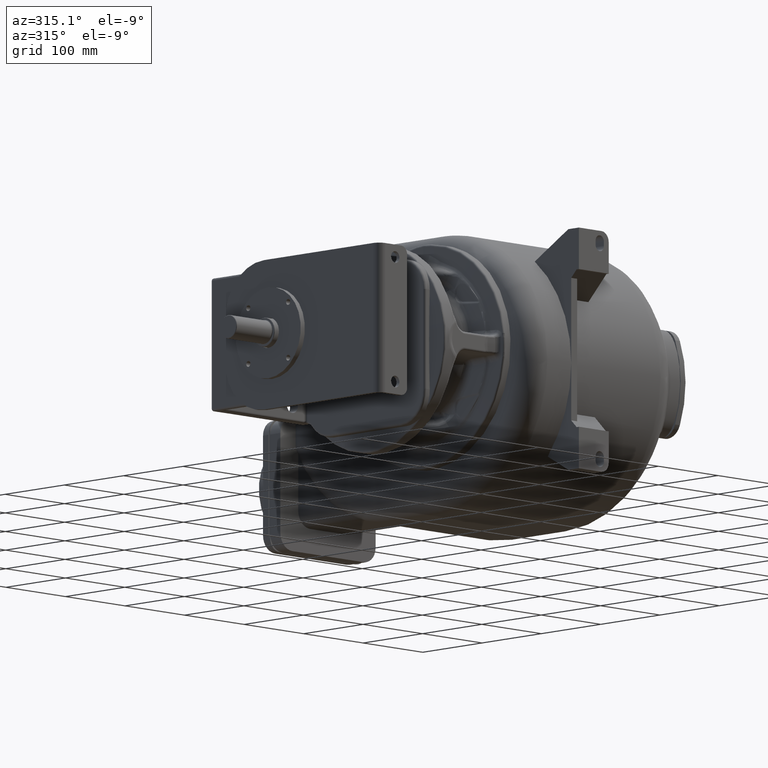
[diagram: clean part render]
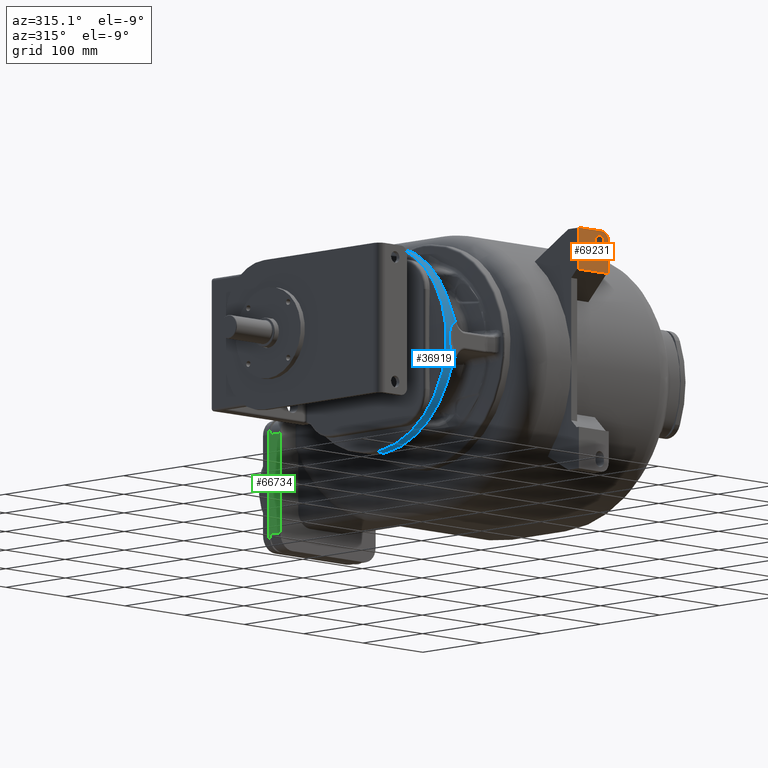
[diagram: same view with three faces highlighted in distinct colors, each labeled with its STEP entity id]
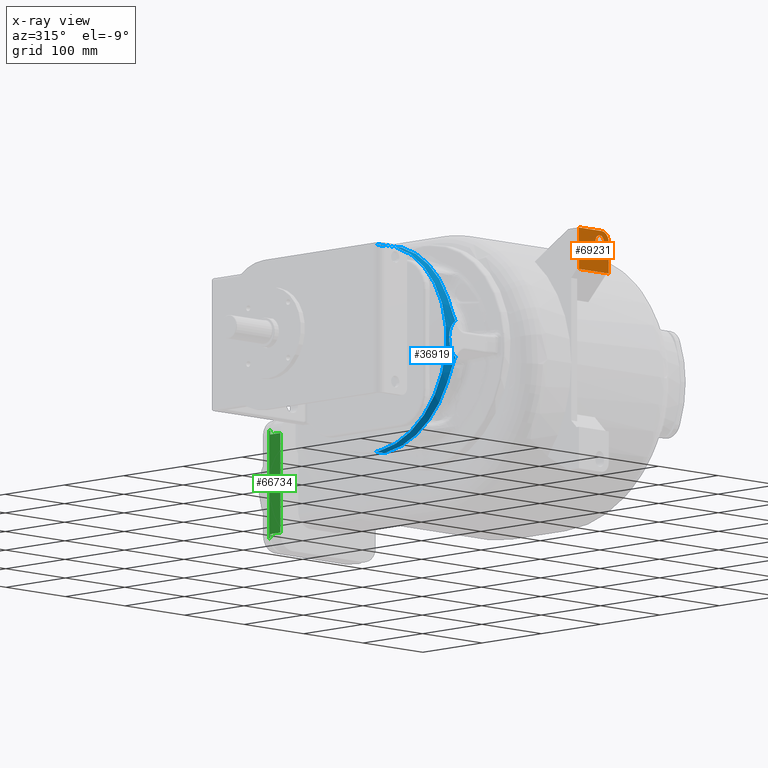
[diagram: x-ray of the same camera — body ghosted, the three highlighted faces saturated]
A machine part, auxiliary view with three faces highlighted in distinct colors.
The next image is the same camera in x-ray (body ghosted, the three faces saturated) — at least one of them is partly hidden behind the body in this view.
Their STEP definitions:

[orange] entity #69231 — the highlighted planar face has unit normal (0, -1, 0).
#25499=DIRECTION('',(1.E0,0.E0,0.E0));
#25500=VECTOR('',#25499,5.E1);
#25501=CARTESIAN_POINT('',(-3.5E1,0.E0,9.5E1));
#25502=LINE('',#25501,#25500);
#25503=DIRECTION('',(0.E0,0.E0,-1.E0));
#25504=VECTOR('',#25503,5.E1);
#25505=CARTESIAN_POINT('',(-3.5E1,0.E0,1.45E2));
#25506=LINE('',#25505,#25504);
#25507=DIRECTION('',(-1.E0,0.E0,0.E0));
#25508=VECTOR('',#25507,3.8E1);
#25509=CARTESIAN_POINT('',(3.E0,0.E0,1.45E2));
#25510=LINE('',#25509,#25508);
#25511=CARTESIAN_POINT('',(3.E0,0.E0,1.33E2));
#25512=DIRECTION('',(0.E0,-1.E0,0.E0));
#25513=DIRECTION('',(1.E0,0.E0,0.E0));
#25514=AXIS2_PLACEMENT_3D('',#25511,#25512,#25513);
#25516=DIRECTION('',(0.E0,0.E0,1.E0));
#25517=VECTOR('',#25516,3.8E1);
#25518=CARTESIAN_POINT('',(1.5E1,0.E0,9.5E1));
#25519=LINE('',#25518,#25517);
#25520=DIRECTION('',(0.E0,0.E0,1.E0));
#25521=VECTOR('',#25520,5.E0);
#25522=CARTESIAN_POINT('',(7.E0,0.E0,1.275E2));
#25523=LINE('',#25522,#25521);
#25524=CARTESIAN_POINT('',(0.E0,0.E0,1.325E2));
#25525=DIRECTION('',(0.E0,-1.E0,0.E0));
#25526=DIRECTION('',(1.E0,0.E0,0.E0));
#25527=AXIS2_PLACEMENT_3D('',#25524,#25525,#25526);
#25529=DIRECTION('',(0.E0,0.E0,-1.E0));
#25530=VECTOR('',#25529,5.E0);
#25531=CARTESIAN_POINT('',(-7.E0,0.E0,1.325E2));
#25532=LINE('',#25531,#25530);
#25533=CARTESIAN_POINT('',(0.E0,0.E0,1.275E2));
#25534=DIRECTION('',(0.E0,-1.E0,0.E0));
#25535=DIRECTION('',(-1.E0,0.E0,0.E0));
#25536=AXIS2_PLACEMENT_3D('',#25533,#25534,#25535);
#28958=CARTESIAN_POINT('',(1.5E1,0.E0,9.5E1));
#28959=CARTESIAN_POINT('',(1.5E1,0.E0,1.33E2));
#28960=VERTEX_POINT('',#28958);
#28961=VERTEX_POINT('',#28959);
#28962=CARTESIAN_POINT('',(3.E0,0.E0,1.45E2));
#28963=CARTESIAN_POINT('',(-3.5E1,0.E0,1.45E2));
#28964=VERTEX_POINT('',#28962);
#28965=VERTEX_POINT('',#28963);
#29048=CARTESIAN_POINT('',(-3.5E1,0.E0,9.5E1));
#29049=VERTEX_POINT('',#29048);
#29050=CARTESIAN_POINT('',(7.E0,0.E0,1.275E2));
#29051=CARTESIAN_POINT('',(7.E0,0.E0,1.325E2));
#29052=VERTEX_POINT('',#29050);
#29053=VERTEX_POINT('',#29051);
#29054=CARTESIAN_POINT('',(-7.E0,0.E0,1.325E2));
#29055=VERTEX_POINT('',#29054);
#29056=CARTESIAN_POINT('',(-7.E0,0.E0,1.275E2));
#29057=VERTEX_POINT('',#29056);
#69206=CARTESIAN_POINT('',(-1.05E2,0.E0,0.E0));
#69207=DIRECTION('',(0.E0,-1.E0,0.E0));
#69208=DIRECTION('',(0.E0,0.E0,1.E0));
#69209=AXIS2_PLACEMENT_3D('',#69206,#69207,#69208);
#69210=PLANE('',#69209);
#69211=ORIENTED_EDGE('',*,*,#69199,.F.);
#69212=ORIENTED_EDGE('',*,*,#69157,.F.);
#69214=ORIENTED_EDGE('',*,*,#69213,.F.);
#69216=ORIENTED_EDGE('',*,*,#69215,.F.);
#69218=ORIENTED_EDGE('',*,*,#69217,.F.);
#69219=EDGE_LOOP('',(#69211,#69212,#69214,#69216,#69218));
#69220=FACE_OUTER_BOUND('',#69219,.F.);
#69222=ORIENTED_EDGE('',*,*,#69221,.T.);
#69224=ORIENTED_EDGE('',*,*,#69223,.T.);
#69226=ORIENTED_EDGE('',*,*,#69225,.T.);
#69228=ORIENTED_EDGE('',*,*,#69227,.T.);
#69229=EDGE_LOOP('',(#69222,#69224,#69226,#69228));
#69230=FACE_BOUND('',#69229,.F.);
#69231=ADVANCED_FACE('',(#69220,#69230),#69210,.T.);
#25515=CIRCLE('',#25514,1.2E1);
#25528=CIRCLE('',#25527,7.E0);
#25537=CIRCLE('',#25536,7.E0);
#69157=EDGE_CURVE('',#28965,#29049,#25506,.T.);
#69199=EDGE_CURVE('',#29049,#28960,#25502,.T.);
#69213=EDGE_CURVE('',#28964,#28965,#25510,.T.);
#69215=EDGE_CURVE('',#28961,#28964,#25515,.T.);
#69217=EDGE_CURVE('',#28960,#28961,#25519,.T.);
#69221=EDGE_CURVE('',#29052,#29053,#25523,.T.);
#69223=EDGE_CURVE('',#29053,#29055,#25528,.T.);
#69225=EDGE_CURVE('',#29055,#29057,#25532,.T.);
#69227=EDGE_CURVE('',#29057,#29052,#25537,.T.);

[blue] entity #36919 — the highlighted cylindrical surface (partial cylindrical patch) has radius 125 mm, axis along (-1, 0, 0).
#2120=DIRECTION('',(-1.E0,5.068852638957E-10,-9.037237529244E-9));
#2121=VECTOR('',#2120,1.296261634701E1);
#2122=CARTESIAN_POINT('',(-1.902556363685E2,1.73E2,1.248038460946E2));
#2123=LINE('',#2122,#2121);
#4297=CARTESIAN_POINT('',(-2.032182527118E2,1.730000000004E2,
-1.248038460869E2));
#4299=DIRECTION('',(1.E0,-3.344139028298E-11,-5.962420972072E-10));
#4300=VECTOR('',#4299,1.296261634353E1);
#4301=CARTESIAN_POINT('',(-2.032182527118E2,1.730000000004E2,
-1.248038460869E2));
#4302=LINE('',#4301,#4300);
#4585=CARTESIAN_POINT('',(-2.032182527118E2,1.730000000004E2,
-1.248038460869E2));
#4586=CARTESIAN_POINT('',(-2.031981088487E2,1.725223680823E2,
-1.247770566161E2));
#4587=CARTESIAN_POINT('',(-2.031645316353E2,1.715668330315E2,
-1.247179617416E2));
#4588=CARTESIAN_POINT('',(-2.031343057508E2,1.701328394574E2,
-1.246127162994E2));
#4589=CARTESIAN_POINT('',(-2.031275886742E2,1.691766521308E2,
-1.245314643374E2));
#4590=CARTESIAN_POINT('',(-2.031275885858E2,1.686985314066E2,
-1.244880588839E2));
#4592=CARTESIAN_POINT('',(-2.031275885832E2,1.8E2,0.E0));
#4593=DIRECTION('',(-1.E0,0.E0,0.E0));
#4594=DIRECTION('',(0.E0,-9.041174875584E-2,-9.959044711652E-1));
#4595=AXIS2_PLACEMENT_3D('',#4592,#4593,#4594);
#4597=CARTESIAN_POINT('',(-2.031275885883E2,1.686985315077E2,1.244880588511E2));
#4598=CARTESIAN_POINT('',(-2.031275890352E2,1.691767597650E2,1.245314738810E2));
#4599=CARTESIAN_POINT('',(-2.031343112285E2,1.701330904004E2,1.246127366243E2));
#4600=CARTESIAN_POINT('',(-2.031645379800E2,1.715670647228E2,1.247179769669E2));
#4601=CARTESIAN_POINT('',(-2.031981129473E2,1.725224672820E2,1.247770621167E2));
#4602=CARTESIAN_POINT('',(-2.032182527156E2,1.730000000066E2,1.248038459774E2));
#4604=CARTESIAN_POINT('',(-1.903468937001E2,1.686569785212E2,1.244842795847E2));
#4605=CARTESIAN_POINT('',(-1.903468936957E2,1.691397138969E2,1.245282664845E2));
#4606=CARTESIAN_POINT('',(-1.903401326935E2,1.701051338833E2,1.246105731844E2));
#4607=CARTESIAN_POINT('',(-1.903097095516E2,1.715529714881E2,1.247170772783E2));
#4608=CARTESIAN_POINT('',(-1.902759124997E2,1.725177473195E2,1.247767974973E2));
#4609=CARTESIAN_POINT('',(-1.902556363685E2,1.73E2,1.248038460946E2));
#4611=CARTESIAN_POINT('',(-1.903468937001E2,1.8E2,0.E0));
#4612=DIRECTION('',(-1.E0,0.E0,0.E0));
#4613=DIRECTION('',(0.E0,-9.079249117815E-1,4.191328602800E-1));
#4614=AXIS2_PLACEMENT_3D('',#4611,#4612,#4613);
#4616=CARTESIAN_POINT('',(-1.857854989760E2,5.689609557005E1,2.168937228867E1));
#4617=CARTESIAN_POINT('',(-1.859113226579E2,5.694885743832E1,2.198883172868E1));
#4618=CARTESIAN_POINT('',(-1.861550131581E2,5.705724559775E1,2.259118596069E1));
#4619=CARTESIAN_POINT('',(-1.864965508976E2,5.722773082041E1,2.350020517821E1));
#4620=CARTESIAN_POINT('',(-1.868199380495E2,5.740861990792E1,2.442659033659E1));
#4621=CARTESIAN_POINT('',(-1.871283392418E2,5.760194949951E1,2.537797564915E1));
#4622=CARTESIAN_POINT('',(-1.874247997998E2,5.781029169028E1,2.636341231286E1));
#4623=CARTESIAN_POINT('',(-1.877132997137E2,5.803842687555E1,2.740025622845E1));
#4624=CARTESIAN_POINT('',(-1.879964354782E2,5.829179962899E1,2.850569392669E1));
#4625=CARTESIAN_POINT('',(-1.882758706346E2,5.857675877126E1,2.969749144232E1));
#4626=CARTESIAN_POINT('',(-1.885513909629E2,5.889995733862E1,3.099059894241E1));
#4627=CARTESIAN_POINT('',(-1.888164660150E2,5.926202342704E1,3.237384311043E1));
#4628=CARTESIAN_POINT('',(-1.890663820435E2,5.966357032169E1,3.383715359990E1));
#4629=CARTESIAN_POINT('',(-1.892978703968E2,6.010496296748E1,3.537040321985E1));
#4630=CARTESIAN_POINT('',(-1.895074267835E2,6.058470255586E1,3.695853623037E1));
#4631=CARTESIAN_POINT('',(-1.896926138510E2,6.109991936308E1,3.858444960388E1));
#4632=CARTESIAN_POINT('',(-1.898524944932E2,6.164622775723E1,4.022927996907E1));
#4633=CARTESIAN_POINT('',(-1.899875193030E2,6.222136188277E1,4.188356724176E1));
#4634=CARTESIAN_POINT('',(-1.901002554919E2,6.283231906578E1,4.356403714386E1));
#4635=CARTESIAN_POINT('',(-1.901919525701E2,6.348495519377E1,4.528148257470E1));
#4636=CARTESIAN_POINT('',(-1.902632003867E2,6.418899832988E1,4.705378989582E1));
#4637=CARTESIAN_POINT('',(-1.903129481551E2,6.493727418930E1,4.885543910449E1));
#4638=CARTESIAN_POINT('',(-1.903412217159E2,6.571697763399E1,5.065220975895E1));
#4639=CARTESIAN_POINT('',(-1.903468938405E2,6.624355820575E1,5.181577168369E1));
#4640=CARTESIAN_POINT('',(-1.903468936902E2,6.650938602430E1,5.239160753639E1));
#4642=CARTESIAN_POINT('',(-1.857854982495E2,5.689609516752E1,
-2.168936640071E1));
#4643=CARTESIAN_POINT('',(-1.859612295721E2,5.687967435972E1,
-2.159616560220E1));
#4644=CARTESIAN_POINT('',(-1.863134604040E2,5.684574503224E1,
-2.140235502511E1));
#4645=CARTESIAN_POINT('',(-1.868443695867E2,5.679164302411E1,
-2.108878760130E1));
#4646=CARTESIAN_POINT('',(-1.873762427482E2,5.673455555396E1,
-2.075262756905E1));
#4647=CARTESIAN_POINT('',(-1.879078804288E2,5.667468255246E1,
-2.039394319942E1));
#4648=CARTESIAN_POINT('',(-1.884380791821E2,5.661223691608E1,
-2.001280893708E1));
#4649=CARTESIAN_POINT('',(-1.889647906191E2,5.654753948101E1,
-1.960990434054E1));
#4650=CARTESIAN_POINT('',(-1.894854026618E2,5.648103077157E1,
-1.918666765528E1));
#4651=CARTESIAN_POINT('',(-1.899980369826E2,5.641308542316E1,
-1.874417759375E1));
#4652=CARTESIAN_POINT('',(-1.905018339171E2,5.634396585435E1,
-1.828279670634E1));
#4653=CARTESIAN_POINT('',(-1.909957361943E2,5.627396705634E1,
-1.780308940210E1));
#4654=CARTESIAN_POINT('',(-1.914786354821E2,5.620340722412E1,
-1.730579520420E1));
#4655=CARTESIAN_POINT('',(-1.919494404357E2,5.613260878707E1,
-1.679172317996E1));
#4656=CARTESIAN_POINT('',(-1.924073587213E2,5.606186308734E1,
-1.626149980251E1));
#4657=CARTESIAN_POINT('',(-1.928515989257E2,5.599146191761E1,
-1.571579253924E1));
#4658=CARTESIAN_POINT('',(-1.932814891792E2,5.592168571477E1,
-1.515522922598E1));
#4659=CARTESIAN_POINT('',(-1.936963895201E2,5.585281150475E1,
-1.458046319803E1));
#4660=CARTESIAN_POINT('',(-1.940957116880E2,5.578510778015E1,
-1.399214081164E1));
#4661=CARTESIAN_POINT('',(-1.944789202143E2,5.571883403305E1,
-1.339090041478E1));
#4662=CARTESIAN_POINT('',(-1.948455270951E2,5.565424431627E1,
-1.277741262993E1));
#4663=CARTESIAN_POINT('',(-1.951950784887E2,5.559157890510E1,
-1.215230883631E1));
#4664=CARTESIAN_POINT('',(-1.955271560418E2,5.553107088637E1,
-1.151624739310E1));
#4665=CARTESIAN_POINT('',(-1.958414120852E2,5.547294061923E1,
-1.086986494110E1));
#4666=CARTESIAN_POINT('',(-1.961374827509E2,5.541739764016E1,
-1.021379823102E1));
#4667=CARTESIAN_POINT('',(-1.964150803834E2,5.536463803159E1,
-9.548655256571E0));
#4668=CARTESIAN_POINT('',(-1.966739454102E2,5.531484814898E1,
-8.875062460609E0));
#4669=CARTESIAN_POINT('',(-1.969137937487E2,5.526820200719E1,
-8.193638113033E0));
#4670=CARTESIAN_POINT('',(-1.971344077258E2,5.522486406788E1,
-7.505040481224E0));
#4671=CARTESIAN_POINT('',(-1.973355901360E2,5.518498532518E1,
-6.809924387414E0));
#4672=CARTESIAN_POINT('',(-1.975171176005E2,5.514870279203E1,
-6.108931823096E0));
#4673=CARTESIAN_POINT('',(-1.976788575541E2,5.511614018007E1,
-5.402708550390E0));
#4674=CARTESIAN_POINT('',(-1.978206926470E2,5.508740502252E1,
-4.691834767004E0));
#4675=CARTESIAN_POINT('',(-1.979424688969E2,5.506259280431E1,
-3.976896349255E0));
#4676=CARTESIAN_POINT('',(-1.980441155144E2,5.504178735753E1,
-3.258520388983E0));
#4677=CARTESIAN_POINT('',(-1.981255497432E2,5.502505860092E1,
-2.537329683490E0));
#4678=CARTESIAN_POINT('',(-1.981866631831E2,5.501246280747E1,
-1.813954054596E0));
#4679=CARTESIAN_POINT('',(-1.982274426141E2,5.500404228765E1,
-1.089038815559E0));
#4680=CARTESIAN_POINT('',(-1.982478523947E2,5.499982481825E1,
-3.632171466885E-1));
#4681=CARTESIAN_POINT('',(-1.982478433595E2,5.499982390585E1,
3.628732769052E-1));
#4682=CARTESIAN_POINT('',(-1.982274608926E2,5.500403880781E1,1.088617283787E0));
#4683=CARTESIAN_POINT('',(-1.981867109220E2,5.501245536235E1,1.813426350991E0));
#4684=CARTESIAN_POINT('',(-1.981255971759E2,5.502504599609E1,2.536700877541E0));
#4685=CARTESIAN_POINT('',(-1.980442066861E2,5.504176969360E1,3.257842234166E0));
#4686=CARTESIAN_POINT('',(-1.979425799179E2,5.506257194683E1,3.976244079505E0));
#4687=CARTESIAN_POINT('',(-1.978207868499E2,5.508738291607E1,4.691250712352E0));
#4688=CARTESIAN_POINT('',(-1.976789690488E2,5.511611910669E1,5.402225804340E0));
#4689=CARTESIAN_POINT('',(-1.975172235606E2,5.514868268581E1,6.108522128541E0));
#4690=CARTESIAN_POINT('',(-1.973356922610E2,5.518496252297E1,6.809505081950E0));
#4691=CARTESIAN_POINT('',(-1.971345631515E2,5.522483566863E1,7.504566221090E0));
#4692=CARTESIAN_POINT('',(-1.969139789159E2,5.526816635332E1,8.193093496564E0));
#4693=CARTESIAN_POINT('',(-1.966741501136E2,5.531480613357E1,8.874471661135E0));
#4694=CARTESIAN_POINT('',(-1.964153245395E2,5.536459311966E1,9.548069506646E0));
#4695=CARTESIAN_POINT('',(-1.961377236804E2,5.541735191676E1,1.021324131641E1));
#4696=CARTESIAN_POINT('',(-1.958416466930E2,5.547289583409E1,1.086935285942E1));
#4697=CARTESIAN_POINT('',(-1.955274032935E2,5.553102752867E1,1.151577932201E1));
#4698=CARTESIAN_POINT('',(-1.951953183934E2,5.559153482961E1,1.215185785288E1));
#4699=CARTESIAN_POINT('',(-1.948457746485E2,5.565419971340E1,1.277697881586E1));
#4700=CARTESIAN_POINT('',(-1.944791906674E2,5.571878781354E1,1.339047125290E1));
#4701=CARTESIAN_POINT('',(-1.940960072012E2,5.578505671403E1,1.399168707766E1));
#4702=CARTESIAN_POINT('',(-1.936967203287E2,5.585275610563E1,1.457999136875E1));
#4703=CARTESIAN_POINT('',(-1.932818369533E2,5.592162867210E1,1.515476248341E1));
#4704=CARTESIAN_POINT('',(-1.928519363202E2,5.599140723371E1,1.571536152883E1));
#4705=CARTESIAN_POINT('',(-1.924076885538E2,5.606181118309E1,1.626110450237E1));
#4706=CARTESIAN_POINT('',(-1.919497801248E2,5.613255742254E1,1.679134436018E1));
#4707=CARTESIAN_POINT('',(-1.914789908997E2,5.620335463605E1,1.730541898128E1));
#4708=CARTESIAN_POINT('',(-1.909961166841E2,5.627391222878E1,1.780270832903E1));
#4709=CARTESIAN_POINT('',(-1.905022332303E2,5.634391011968E1,1.828241987078E1));
#4710=CARTESIAN_POINT('',(-1.899984296255E2,5.641303219231E1,1.874382690391E1));
#4711=CARTESIAN_POINT('',(-1.894857831805E2,5.648098133301E1,1.918634955202E1));
#4712=CARTESIAN_POINT('',(-1.889651877139E2,5.654749009347E1,1.960959337555E1));
#4713=CARTESIAN_POINT('',(-1.884384943387E2,5.661218588301E1,2.001249438570E1));
#4714=CARTESIAN_POINT('',(-1.879082864860E2,5.667463716944E1,2.039366914815E1));
#4715=CARTESIAN_POINT('',(-1.873765691118E2,5.673451971992E1,2.075241495952E1));
#4716=CARTESIAN_POINT('',(-1.868445858899E2,5.679161924390E1,2.108864965752E1));
#4717=CARTESIAN_POINT('',(-1.863135629884E2,5.684573605403E1,2.140230171774E1));
#4718=CARTESIAN_POINT('',(-1.859612617321E2,5.687967094907E1,2.159615050930E1));
#4719=CARTESIAN_POINT('',(-1.857854989760E2,5.689609557005E1,2.168937228867E1));
#4721=CARTESIAN_POINT('',(-1.903468936928E2,6.650938602292E1,
-5.239160753420E1));
#4722=CARTESIAN_POINT('',(-1.903468936937E2,6.624344282509E1,
-5.181552130165E1));
#4723=CARTESIAN_POINT('',(-1.903412538399E2,6.571662827527E1,
-5.065143422761E1));
#4724=CARTESIAN_POINT('',(-1.903129425302E2,6.493652541042E1,
-4.885368952148E1));
#4725=CARTESIAN_POINT('',(-1.902631014741E2,6.418794628904E1,
-4.705120931445E1));
#4726=CARTESIAN_POINT('',(-1.901918442929E2,6.348380133654E1,
-4.527851634974E1));
#4727=CARTESIAN_POINT('',(-1.901001130998E2,6.283119669239E1,
-4.356101565598E1));
#4728=CARTESIAN_POINT('',(-1.899872831362E2,6.222044374229E1,
-4.188097482012E1));
#4729=CARTESIAN_POINT('',(-1.898523819178E2,6.164570643212E1,
-4.022772337389E1));
#4730=CARTESIAN_POINT('',(-1.896926826725E2,6.110007489436E1,
-3.858489041675E1));
#4731=CARTESIAN_POINT('',(-1.895077127429E2,6.058569258631E1,
-3.696169057937E1));
#4732=CARTESIAN_POINT('',(-1.892987161329E2,6.010668971430E1,
-3.537621713343E1));
#4733=CARTESIAN_POINT('',(-1.890676436421E2,5.966579531862E1,
-3.384504047303E1));
#4734=CARTESIAN_POINT('',(-1.888179891900E2,5.926443080375E1,
-3.238281121557E1));
#4735=CARTESIAN_POINT('',(-1.885531877438E2,5.890229517721E1,
-3.099973746048E1));
#4736=CARTESIAN_POINT('',(-1.882777748155E2,5.857882959200E1,
-2.970597272178E1));
#4737=CARTESIAN_POINT('',(-1.879982210528E2,5.829348219617E1,
-2.851289727756E1));
#4738=CARTESIAN_POINT('',(-1.877148200133E2,5.803971265449E1,
-2.740599923519E1));
#4739=CARTESIAN_POINT('',(-1.874259976431E2,5.781120726979E1,
-2.636767480474E1));
#4740=CARTESIAN_POINT('',(-1.871292835367E2,5.760256397050E1,
-2.538095291580E1));
#4741=CARTESIAN_POINT('',(-1.868207196355E2,5.740905082706E1,
-2.442876169698E1));
#4742=CARTESIAN_POINT('',(-1.864971645282E2,5.722803466271E1,
-2.350179889422E1));
#4743=CARTESIAN_POINT('',(-1.861554169517E2,5.705742695623E1,
-2.259218627737E1));
#4744=CARTESIAN_POINT('',(-1.859114728657E2,5.694892144699E1,
-2.198918851780E1));
#4745=CARTESIAN_POINT('',(-1.857854982495E2,5.689609516752E1,
-2.168936640071E1));
#4747=CARTESIAN_POINT('',(-1.903468937001E2,1.8E2,0.E0));
#4748=DIRECTION('',(-1.E0,0.E0,0.E0));
#4749=DIRECTION('',(0.E0,-9.074417178294E-2,-9.958742366822E-1));
#4750=AXIS2_PLACEMENT_3D('',#4747,#4748,#4749);
#4752=CARTESIAN_POINT('',(-1.902556363682E2,1.73E2,-1.248038460946E2));
#4753=CARTESIAN_POINT('',(-1.902759124984E2,1.725177473410E2,
-1.247767974986E2));
#4754=CARTESIAN_POINT('',(-1.903097095497E2,1.715529715388E2,
-1.247170772816E2));
#4755=CARTESIAN_POINT('',(-1.903401326922E2,1.701051339379E2,
-1.246105731887E2));
#4756=CARTESIAN_POINT('',(-1.903468936955E2,1.691397139239E2,
-1.245282664870E2));
#4757=CARTESIAN_POINT('',(-1.903468936999E2,1.686569785271E2,
-1.244842795854E2));
#30248=VERTEX_POINT('',#4297);
#30250=VERTEX_POINT('',#4590);
#30251=CARTESIAN_POINT('',(-2.031275885832E2,1.686985315029E2,
1.244880589045E2));
#30252=VERTEX_POINT('',#30251);
#30255=VERTEX_POINT('',#4602);
#30307=VERTEX_POINT('',#4721);
#30308=VERTEX_POINT('',#4745);
#30311=VERTEX_POINT('',#4752);
#30312=VERTEX_POINT('',#4757);
#30331=VERTEX_POINT('',#4604);
#30332=VERTEX_POINT('',#4609);
#30337=CARTESIAN_POINT('',(-1.903468937001E2,6.650938602731E1,
5.239160753500E1));
#30338=VERTEX_POINT('',#30337);
#30539=VERTEX_POINT('',#4719);
#36893=CARTESIAN_POINT('',(-9.283303884779E1,1.8E2,0.E0));
#36894=DIRECTION('',(-1.E0,0.E0,0.E0));
#36895=DIRECTION('',(0.E0,1.E0,0.E0));
#36896=AXIS2_PLACEMENT_3D('',#36893,#36894,#36895);
#36897=CYLINDRICAL_SURFACE('',#36896,1.25E2);
#36898=ORIENTED_EDGE('',*,*,#36724,.T.);
#36899=ORIENTED_EDGE('',*,*,#36743,.T.);
#36900=ORIENTED_EDGE('',*,*,#36887,.T.);
#36901=ORIENTED_EDGE('',*,*,#33793,.F.);
#36903=ORIENTED_EDGE('',*,*,#36902,.F.);
#36905=ORIENTED_EDGE('',*,*,#36904,.F.);
#36907=ORIENTED_EDGE('',*,*,#36906,.F.);
#36909=ORIENTED_EDGE('',*,*,#36908,.F.);
#36911=ORIENTED_EDGE('',*,*,#36910,.F.);
#36913=ORIENTED_EDGE('',*,*,#36912,.F.);
#36915=ORIENTED_EDGE('',*,*,#36914,.F.);
#36916=ORIENTED_EDGE('',*,*,#36595,.F.);
#36917=EDGE_LOOP('',(#36898,#36899,#36900,#36901,#36903,#36905,#36907,#36909,
#36911,#36913,#36915,#36916));
#36918=FACE_OUTER_BOUND('',#36917,.F.);
#36919=ADVANCED_FACE('',(#36918),#36897,.T.);
#4591=B_SPLINE_CURVE_WITH_KNOTS('',3,(#4585,#4586,#4587,#4588,#4589,#4590),
.UNSPECIFIED.,.F.,.F.,(4,1,1,4),(0.E0,3.333333333333E-1,6.666666666667E-1,1.E0),
.UNSPECIFIED.);
#4596=CIRCLE('',#4595,1.25E2);
#4603=B_SPLINE_CURVE_WITH_KNOTS('',3,(#4597,#4598,#4599,#4600,#4601,#4602),
.UNSPECIFIED.,.F.,.F.,(4,1,1,4),(0.E0,3.333333333333E-1,6.666666666667E-1,1.E0),
.UNSPECIFIED.);
#4610=B_SPLINE_CURVE_WITH_KNOTS('',3,(#4604,#4605,#4606,#4607,#4608,#4609),
.UNSPECIFIED.,.F.,.F.,(4,1,1,4),(0.E0,3.333333333333E-1,6.666666666667E-1,1.E0),
.UNSPECIFIED.);
#4615=CIRCLE('',#4614,1.25E2);
#4641=B_SPLINE_CURVE_WITH_KNOTS('',3,(#4616,#4617,#4618,#4619,#4620,#4621,#4622,
#4623,#4624,#4625,#4626,#4627,#4628,#4629,#4630,#4631,#4632,#4633,#4634,#4635,
#4636,#4637,#4638,#4639,#4640),.UNSPECIFIED.,.F.,.F.,(4,1,1,1,1,1,1,1,1,1,1,1,1,
1,1,1,1,1,1,1,1,1,4),(0.E0,4.545454545455E-2,9.090909090909E-2,
1.363636363636E-1,1.818181818182E-1,2.272727272727E-1,2.727272727273E-1,
3.181818181818E-1,3.636363636364E-1,4.090909090909E-1,4.545454545455E-1,5.E-1,
5.454545454545E-1,5.909090909091E-1,6.363636363636E-1,6.818181818182E-1,
7.272727272727E-1,7.727272727273E-1,8.181818181818E-1,8.636363636364E-1,
9.090909090909E-1,9.545454545455E-1,1.E0),.UNSPECIFIED.);
#4720=B_SPLINE_CURVE_WITH_KNOTS('',3,(#4642,#4643,#4644,#4645,#4646,#4647,#4648,
#4649,#4650,#4651,#4652,#4653,#4654,#4655,#4656,#4657,#4658,#4659,#4660,#4661,
#4662,#4663,#4664,#4665,#4666,#4667,#4668,#4669,#4670,#4671,#4672,#4673,#4674,
#4675,#4676,#4677,#4678,#4679,#4680,#4681,#4682,#4683,#4684,#4685,#4686,#4687,
#4688,#4689,#4690,#4691,#4692,#4693,#4694,#4695,#4696,#4697,#4698,#4699,#4700,
#4701,#4702,#4703,#4704,#4705,#4706,#4707,#4708,#4709,#4710,#4711,#4712,#4713,
#4714,#4715,#4716,#4717,#4718,#4719),.UNSPECIFIED.,.F.,.F.,(4,1,1,1,1,1,1,1,1,1,
1,1,1,1,1,1,1,1,1,1,1,1,1,1,1,1,1,1,1,1,1,1,1,1,1,1,1,1,1,1,1,1,1,1,1,1,1,1,1,1,
1,1,1,1,1,1,1,1,1,1,1,1,1,1,1,1,1,1,1,1,1,1,1,1,1,4),(0.E0,1.333333333333E-2,
2.666666666667E-2,4.E-2,5.333333333333E-2,6.666666666667E-2,8.E-2,
9.333333333333E-2,1.066666666667E-1,1.2E-1,1.333333333333E-1,1.466666666667E-1,
1.6E-1,1.733333333333E-1,1.866666666667E-1,2.E-1,2.133333333333E-1,
2.266666666667E-1,2.4E-1,2.533333333333E-1,2.666666666667E-1,2.8E-1,
2.933333333333E-1,3.066666666667E-1,3.2E-1,3.333333333333E-1,3.466666666667E-1,
3.6E-1,3.733333333333E-1,3.866666666667E-1,4.E-1,4.133333333333E-1,
4.266666666667E-1,4.4E-1,4.533333333333E-1,4.666666666667E-1,4.8E-1,
4.933333333333E-1,5.066666666667E-1,5.2E-1,5.333333333333E-1,5.466666666667E-1,
5.6E-1,5.733333333333E-1,5.866666666667E-1,6.E-1,6.133333333333E-1,
6.266666666667E-1,6.4E-1,6.533333333333E-1,6.666666666667E-1,6.8E-1,
6.933333333333E-1,7.066666666667E-1,7.2E-1,7.333333333333E-1,7.466666666667E-1,
7.6E-1,7.733333333333E-1,7.866666666667E-1,8.E-1,8.133333333333E-1,
8.266666666667E-1,8.4E-1,8.533333333333E-1,8.666666666667E-1,8.8E-1,
8.933333333333E-1,9.066666666667E-1,9.2E-1,9.333333333333E-1,9.466666666667E-1,
9.6E-1,9.733333333333E-1,9.866666666667E-1,1.E0),.UNSPECIFIED.);
#4746=B_SPLINE_CURVE_WITH_KNOTS('',3,(#4721,#4722,#4723,#4724,#4725,#4726,#4727,
#4728,#4729,#4730,#4731,#4732,#4733,#4734,#4735,#4736,#4737,#4738,#4739,#4740,
#4741,#4742,#4743,#4744,#4745),.UNSPECIFIED.,.F.,.F.,(4,1,1,1,1,1,1,1,1,1,1,1,1,
1,1,1,1,1,1,1,1,1,4),(0.E0,4.545454545455E-2,9.090909090909E-2,
1.363636363636E-1,1.818181818182E-1,2.272727272727E-1,2.727272727273E-1,
3.181818181818E-1,3.636363636364E-1,4.090909090909E-1,4.545454545455E-1,5.E-1,
5.454545454545E-1,5.909090909091E-1,6.363636363636E-1,6.818181818182E-1,
7.272727272727E-1,7.727272727273E-1,8.181818181818E-1,8.636363636364E-1,
9.090909090909E-1,9.545454545455E-1,1.E0),.UNSPECIFIED.);
#4751=CIRCLE('',#4750,1.25E2);
#4758=B_SPLINE_CURVE_WITH_KNOTS('',3,(#4752,#4753,#4754,#4755,#4756,#4757),
.UNSPECIFIED.,.F.,.F.,(4,1,1,4),(0.E0,3.333333333333E-1,6.666666666667E-1,1.E0),
.UNSPECIFIED.);
#33793=EDGE_CURVE('',#30332,#30255,#2123,.T.);
#36595=EDGE_CURVE('',#30248,#30311,#4302,.T.);
#36724=EDGE_CURVE('',#30248,#30250,#4591,.T.);
#36743=EDGE_CURVE('',#30250,#30252,#4596,.T.);
#36887=EDGE_CURVE('',#30252,#30255,#4603,.T.);
#36902=EDGE_CURVE('',#30331,#30332,#4610,.T.);
#36904=EDGE_CURVE('',#30338,#30331,#4615,.T.);
#36906=EDGE_CURVE('',#30539,#30338,#4641,.T.);
#36908=EDGE_CURVE('',#30308,#30539,#4720,.T.);
#36910=EDGE_CURVE('',#30307,#30308,#4746,.T.);
#36912=EDGE_CURVE('',#30312,#30307,#4751,.T.);
#36914=EDGE_CURVE('',#30311,#30312,#4758,.T.);

[green] entity #66734 — the highlighted planar face has unit normal (-1, 0, 0).
#21416=DIRECTION('',(0.E0,0.E0,-1.E0));
#21417=VECTOR('',#21416,1.2E2);
#21418=CARTESIAN_POINT('',(-1.15E2,4.23E2,-6.4E1));
#21419=LINE('',#21418,#21417);
#23677=DIRECTION('',(0.E0,0.E0,1.E0));
#23678=VECTOR('',#23677,6.5E1);
#23679=CARTESIAN_POINT('',(-1.15E2,4.42E2,-1.24E2));
#23680=LINE('',#23679,#23678);
#23719=DIRECTION('',(0.E0,0.E0,1.E0));
#23720=VECTOR('',#23719,6.5E1);
#23721=CARTESIAN_POINT('',(-1.15E2,4.42E2,-1.89E2));
#23722=LINE('',#23721,#23720);
#23781=DIRECTION('',(0.E0,-1.E0,0.E0));
#23782=VECTOR('',#23781,2.E0);
#23783=CARTESIAN_POINT('',(-1.15E2,4.42E2,-5.9E1));
#23784=LINE('',#23783,#23782);
#23785=DIRECTION('',(0.E0,-1.E0,0.E0));
#23786=VECTOR('',#23785,1.7E1);
#23787=CARTESIAN_POINT('',(-1.15E2,4.4E2,-6.4E1));
#23788=LINE('',#23787,#23786);
#23789=DIRECTION('',(0.E0,-1.E0,0.E0));
#23790=VECTOR('',#23789,2.E0);
#23791=CARTESIAN_POINT('',(-1.15E2,4.42E2,-1.89E2));
#23792=LINE('',#23791,#23790);
#23793=DIRECTION('',(0.E0,0.E0,1.E0));
#23794=VECTOR('',#23793,5.E0);
#23795=CARTESIAN_POINT('',(-1.15E2,4.4E2,-6.4E1));
#23796=LINE('',#23795,#23794);
#23820=DIRECTION('',(0.E0,-1.E0,0.E0));
#23821=VECTOR('',#23820,1.7E1);
#23822=CARTESIAN_POINT('',(-1.15E2,4.4E2,-1.84E2));
#23823=LINE('',#23822,#23821);
#23833=DIRECTION('',(0.E0,0.E0,1.E0));
#23834=VECTOR('',#23833,5.E0);
#23835=CARTESIAN_POINT('',(-1.15E2,4.4E2,-1.89E2));
#23836=LINE('',#23835,#23834);
#28946=CARTESIAN_POINT('',(-1.15E2,4.23E2,-6.4E1));
#28947=CARTESIAN_POINT('',(-1.15E2,4.23E2,-1.84E2));
#28948=VERTEX_POINT('',#28946);
#28949=VERTEX_POINT('',#28947);
#29276=CARTESIAN_POINT('',(-1.15E2,4.4E2,-1.89E2));
#29278=VERTEX_POINT('',#29276);
#29282=CARTESIAN_POINT('',(-1.15E2,4.42E2,-1.89E2));
#29283=VERTEX_POINT('',#29282);
#29293=CARTESIAN_POINT('',(-1.15E2,4.4E2,-5.9E1));
#29295=VERTEX_POINT('',#29293);
#29296=CARTESIAN_POINT('',(-1.15E2,4.42E2,-5.9E1));
#29297=VERTEX_POINT('',#29296);
#29381=CARTESIAN_POINT('',(-1.15E2,4.4E2,-6.4E1));
#29383=VERTEX_POINT('',#29381);
#29384=CARTESIAN_POINT('',(-1.15E2,4.4E2,-1.84E2));
#29386=VERTEX_POINT('',#29384);
#29513=CARTESIAN_POINT('',(-1.15E2,4.42E2,-1.24E2));
#29515=VERTEX_POINT('',#29513);
#66712=CARTESIAN_POINT('',(-1.15E2,4.4E2,-6.4E1));
#66713=DIRECTION('',(-1.E0,0.E0,0.E0));
#66714=DIRECTION('',(0.E0,0.E0,-1.E0));
#66715=AXIS2_PLACEMENT_3D('',#66712,#66713,#66714);
#66716=PLANE('',#66715);
#66717=ORIENTED_EDGE('',*,*,#66622,.T.);
#66718=ORIENTED_EDGE('',*,*,#66574,.T.);
#66720=ORIENTED_EDGE('',*,*,#66719,.T.);
#66722=ORIENTED_EDGE('',*,*,#66721,.F.);
#66724=ORIENTED_EDGE('',*,*,#66723,.T.);
#66725=ORIENTED_EDGE('',*,*,#64794,.T.);
#66727=ORIENTED_EDGE('',*,*,#66726,.F.);
#66729=ORIENTED_EDGE('',*,*,#66728,.F.);
#66731=ORIENTED_EDGE('',*,*,#66730,.F.);
#66732=EDGE_LOOP('',(#66717,#66718,#66720,#66722,#66724,#66725,#66727,#66729,
#66731));
#66733=FACE_OUTER_BOUND('',#66732,.F.);
#66734=ADVANCED_FACE('',(#66733),#66716,.T.);
#64794=EDGE_CURVE('',#28948,#28949,#21419,.T.);
#66574=EDGE_CURVE('',#29515,#29297,#23680,.T.);
#66622=EDGE_CURVE('',#29283,#29515,#23722,.T.);
#66719=EDGE_CURVE('',#29297,#29295,#23784,.T.);
#66721=EDGE_CURVE('',#29383,#29295,#23796,.T.);
#66723=EDGE_CURVE('',#29383,#28948,#23788,.T.);
#66726=EDGE_CURVE('',#29386,#28949,#23823,.T.);
#66728=EDGE_CURVE('',#29278,#29386,#23836,.T.);
#66730=EDGE_CURVE('',#29283,#29278,#23792,.T.);